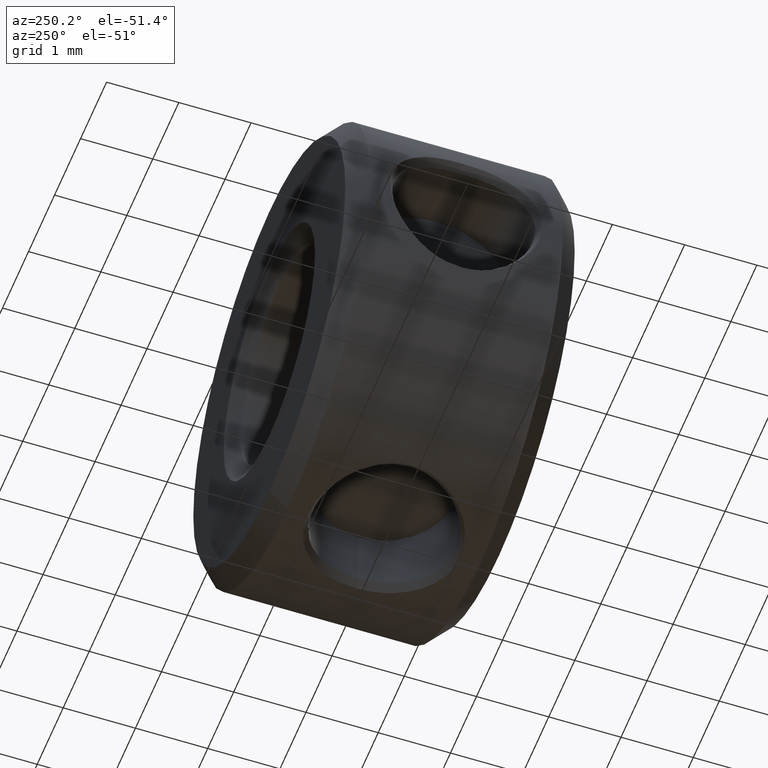
[diagram: clean part render]
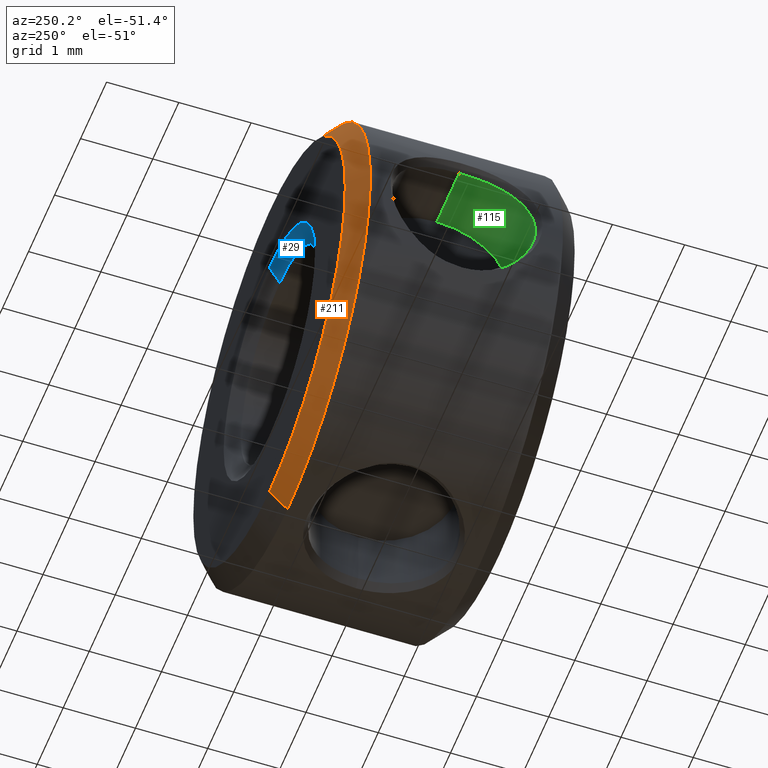
[diagram: same view with three faces highlighted in distinct colors, each labeled with its STEP entity id]
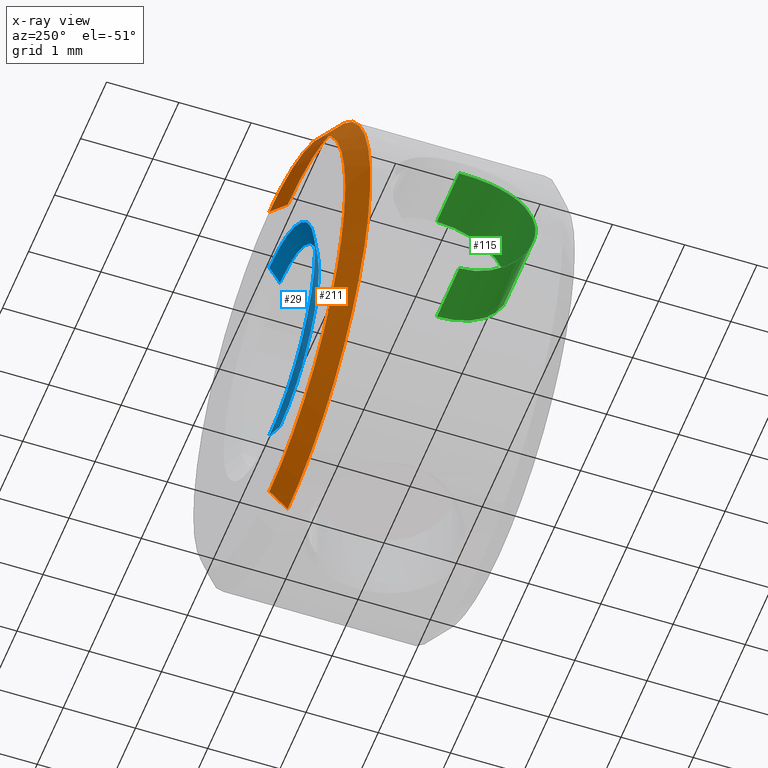
[diagram: x-ray of the same camera — body ghosted, the three highlighted faces saturated]
A machine part, auxiliary view with three faces highlighted in distinct colors.
The next image is the same camera in x-ray (body ghosted, the three faces saturated) — at least one of them is partly hidden behind the body in this view.
Their STEP definitions:

[orange] entity #211 — the highlighted conical surface has half-angle 45 deg.
#204 = VERTEX_POINT ( 'NONE', #1325 ) ;
#205 = EDGE_CURVE ( 'NONE', #297, #204, #1324, .T. ) ;
#211 = ADVANCED_FACE ( 'NONE', ( #1231 ), #1606, .T. ) ;
#212 = EDGE_LOOP ( 'NONE', ( #213, #214, #252, #253 ) ) ;
#213 = ORIENTED_EDGE ( 'NONE', *, *, #299, .F. ) ;
#214 = ORIENTED_EDGE ( 'NONE', *, *, #251, .F. ) ;
#251 = EDGE_CURVE ( 'NONE', #297, #294, #1519, .T. ) ;
#252 = ORIENTED_EDGE ( 'NONE', *, *, #205, .T. ) ;
#253 = ORIENTED_EDGE ( 'NONE', *, *, #270, .T. ) ;
#270 = EDGE_CURVE ( 'NONE', #204, #300, #1423, .T. ) ;
#294 = VERTEX_POINT ( 'NONE', #1767 ) ;
#297 = VERTEX_POINT ( 'NONE', #1761 ) ;
#299 = EDGE_CURVE ( 'NONE', #294, #300, #1760, .T. ) ;
#300 = VERTEX_POINT ( 'NONE', #1756 ) ;
#1231 = FACE_OUTER_BOUND ( 'NONE', #212, .T. ) ;
#1321 = DIRECTION ( 'NONE',  ( 0.0000000000000000000, -0.7071067811865482400, -0.7071067811865469100 ) ) ;
#1322 = VECTOR ( 'NONE', #1321, 999.9999999999998900 ) ;
#1323 = CARTESIAN_POINT ( 'NONE',  ( 1.252768374745863700E-015, 1.587499999999999900, -2.920999999999999400 ) ) ;
#1324 = LINE ( 'NONE', #1323, #1322 ) ;
#1325 = CARTESIAN_POINT ( 'NONE',  ( 1.641593733475148500E-015, 1.333500000000000100, -3.174999999999998900 ) ) ;
#1420 = DIRECTION ( 'NONE',  ( 0.0000000000000000000, 0.0000000000000000000, 1.000000000000000000 ) ) ;
#1421 = DIRECTION ( 'NONE',  ( 0.0000000000000000000, 1.000000000000000000, 0.0000000000000000000 ) ) ;
#1422 = AXIS2_PLACEMENT_3D ( 'NONE', #1424, #1421, #1420 ) ;
#1423 = CIRCLE ( 'NONE', #1422, 3.174999999999998900 ) ;
#1424 = CARTESIAN_POINT ( 'NONE',  ( 1.252768374745863700E-015, 1.333500000000000100, 0.0000000000000000000 ) ) ;
#1480 = CARTESIAN_POINT ( 'NONE',  ( 1.252768374745863700E-015, 1.587499999999999900, 0.0000000000000000000 ) ) ;
#1481 = DIRECTION ( 'NONE',  ( 0.0000000000000000000, 0.0000000000000000000, -1.000000000000000000 ) ) ;
#1482 = DIRECTION ( 'NONE',  ( 0.0000000000000000000, -1.000000000000000000, 0.0000000000000000000 ) ) ;
#1483 = AXIS2_PLACEMENT_3D ( 'NONE', #1480, #1482, #1481 ) ;
#1516 = DIRECTION ( 'NONE',  ( 0.0000000000000000000, 0.0000000000000000000, 1.000000000000000000 ) ) ;
#1517 = DIRECTION ( 'NONE',  ( 0.0000000000000000000, 1.000000000000000000, 0.0000000000000000000 ) ) ;
#1518 = AXIS2_PLACEMENT_3D ( 'NONE', #1525, #1517, #1516 ) ;
#1519 = CIRCLE ( 'NONE', #1518, 2.920999999999999400 ) ;
#1525 = CARTESIAN_POINT ( 'NONE',  ( 1.252768374745863700E-015, 1.587499999999999900, 0.0000000000000000000 ) ) ;
#1606 = CONICAL_SURFACE ( 'NONE', #1483, 2.920999999999999400, 0.7853981633974473900 ) ;
#1756 = CARTESIAN_POINT ( 'NONE',  ( 1.252768374745863700E-015, 1.333500000000000100, 3.174999999999998900 ) ) ;
#1757 = DIRECTION ( 'NONE',  ( 8.659560562354926700E-017, -0.7071067811865482400, 0.7071067811865469100 ) ) ;
#1758 = VECTOR ( 'NONE', #1757, 999.9999999999998900 ) ;
#1759 = CARTESIAN_POINT ( 'NONE',  ( 1.610487704776805500E-015, 1.587499999999999900, 2.920999999999999400 ) ) ;
#1760 = LINE ( 'NONE', #1759, #1758 ) ;
#1761 = CARTESIAN_POINT ( 'NONE',  ( 1.252768374745863700E-015, 1.587499999999999900, -2.920999999999999400 ) ) ;
#1767 = CARTESIAN_POINT ( 'NONE',  ( 1.626040719125977000E-015, 1.587499999999999900, 2.920999999999999400 ) ) ;

[blue] entity #29 — the highlighted conical surface has half-angle 60 deg.
#29 = ADVANCED_FACE ( 'NONE', ( #652 ), #613, .F. ) ;
#30 = EDGE_LOOP ( 'NONE', ( #291, #301, #285, #286 ) ) ;
#284 = VERTEX_POINT ( 'NONE', #1718 ) ;
#285 = ORIENTED_EDGE ( 'NONE', *, *, #292, .T. ) ;
#286 = ORIENTED_EDGE ( 'NONE', *, *, #287, .F. ) ;
#287 = EDGE_CURVE ( 'NONE', #308, #296, #1716, .T. ) ;
#291 = ORIENTED_EDGE ( 'NONE', *, *, #307, .F. ) ;
#292 = EDGE_CURVE ( 'NONE', #284, #296, #1772, .T. ) ;
#295 = EDGE_CURVE ( 'NONE', #305, #284, #1766, .T. ) ;
#296 = VERTEX_POINT ( 'NONE', #1762 ) ;
#301 = ORIENTED_EDGE ( 'NONE', *, *, #295, .T. ) ;
#305 = VERTEX_POINT ( 'NONE', #1751 ) ;
#307 = EDGE_CURVE ( 'NONE', #305, #308, #1750, .T. ) ;
#308 = VERTEX_POINT ( 'NONE', #1745 ) ;
#538 = DIRECTION ( 'NONE',  ( 0.0000000000000000000, 0.0000000000000000000, 1.000000000000000000 ) ) ;
#539 = DIRECTION ( 'NONE',  ( 0.0000000000000000000, 1.000000000000000000, 0.0000000000000000000 ) ) ;
#540 = AXIS2_PLACEMENT_3D ( 'NONE', #614, #539, #538 ) ;
#613 = CONICAL_SURFACE ( 'NONE', #540, 1.499999999999998900, 1.047197551196593900 ) ;
#614 = CARTESIAN_POINT ( 'NONE',  ( 1.252768374745863700E-015, 1.440853031625834100, 0.0000000000000000000 ) ) ;
#652 = FACE_OUTER_BOUND ( 'NONE', #30, .T. ) ;
#1713 = DIRECTION ( 'NONE',  ( 0.0000000000000000000, 0.5000000000000034400, 0.8660254037844367100 ) ) ;
#1714 = VECTOR ( 'NONE', #1713, 999.9999999999998900 ) ;
#1715 = CARTESIAN_POINT ( 'NONE',  ( 1.252768374745863700E-015, 1.440853031625834100, 1.499999999999998900 ) ) ;
#1716 = LINE ( 'NONE', #1715, #1714 ) ;
#1718 = CARTESIAN_POINT ( 'NONE',  ( 1.467571423316309400E-015, 1.587500000000000400, -1.753999999999999100 ) ) ;
#1745 = CARTESIAN_POINT ( 'NONE',  ( 1.252768374745863700E-015, 1.440853031625834100, 1.499999999999998900 ) ) ;
#1746 = DIRECTION ( 'NONE',  ( 0.0000000000000000000, 0.0000000000000000000, 1.000000000000000000 ) ) ;
#1747 = DIRECTION ( 'NONE',  ( 0.0000000000000000000, 1.000000000000000000, 0.0000000000000000000 ) ) ;
#1748 = CARTESIAN_POINT ( 'NONE',  ( 1.252768374745863700E-015, 1.440853031625834100, 0.0000000000000000000 ) ) ;
#1749 = AXIS2_PLACEMENT_3D ( 'NONE', #1748, #1747, #1746 ) ;
#1750 = CIRCLE ( 'NONE', #1749, 1.499999999999998900 ) ;
#1751 = CARTESIAN_POINT ( 'NONE',  ( 1.452018408967138100E-015, 1.440853031625834100, -1.499999999999998900 ) ) ;
#1762 = CARTESIAN_POINT ( 'NONE',  ( 1.252768374745863700E-015, 1.587500000000000400, 1.753999999999999100 ) ) ;
#1763 = DIRECTION ( 'NONE',  ( 1.060575238724904700E-016, 0.5000000000000034400, -0.8660254037844367100 ) ) ;
#1764 = VECTOR ( 'NONE', #1763, 999.9999999999998900 ) ;
#1765 = CARTESIAN_POINT ( 'NONE',  ( 1.436465394617966800E-015, 1.440853031625834100, -1.499999999999998900 ) ) ;
#1766 = LINE ( 'NONE', #1765, #1764 ) ;
#1768 = DIRECTION ( 'NONE',  ( 0.0000000000000000000, 0.0000000000000000000, 1.000000000000000000 ) ) ;
#1769 = DIRECTION ( 'NONE',  ( 0.0000000000000000000, 1.000000000000000000, 0.0000000000000000000 ) ) ;
#1770 = CARTESIAN_POINT ( 'NONE',  ( 1.252768374745863700E-015, 1.587500000000000400, 0.0000000000000000000 ) ) ;
#1771 = AXIS2_PLACEMENT_3D ( 'NONE', #1770, #1769, #1768 ) ;
#1772 = CIRCLE ( 'NONE', #1771, 1.753999999999999100 ) ;

[green] entity #115 — the highlighted cylindrical surface (partial cylindrical patch) has radius 0.9906 mm, axis along (-1, 0, -0).
#28 = EDGE_CURVE ( 'NONE', #125, #61, #536, .T. ) ;
#60 = VERTEX_POINT ( 'NONE', #641 ) ;
#61 = VERTEX_POINT ( 'NONE', #644 ) ;
#115 = ADVANCED_FACE ( 'NONE', ( #796 ), #761, .F. ) ;
#116 = EDGE_LOOP ( 'NONE', ( #117, #126, #128, #130 ) ) ;
#117 = ORIENTED_EDGE ( 'NONE', *, *, #124, .F. ) ;
#118 = VERTEX_POINT ( 'NONE', #757 ) ;
#124 = EDGE_CURVE ( 'NONE', #118, #125, #865, .T. ) ;
#125 = VERTEX_POINT ( 'NONE', #888 ) ;
#126 = ORIENTED_EDGE ( 'NONE', *, *, #127, .T. ) ;
#127 = EDGE_CURVE ( 'NONE', #118, #60, #887, .T. ) ;
#128 = ORIENTED_EDGE ( 'NONE', *, *, #129, .T. ) ;
#129 = EDGE_CURVE ( 'NONE', #60, #61, #1041, .T. ) ;
#130 = ORIENTED_EDGE ( 'NONE', *, *, #28, .F. ) ;
#536 = LINE ( 'NONE', #541, #654 ) ;
#541 = CARTESIAN_POINT ( 'NONE',  ( -2.032000000000003600, 0.0000000000000000000, 0.9905999999999927100 ) ) ;
#641 = CARTESIAN_POINT ( 'NONE',  ( -2.889510761236799000, 5.980579797028376000E-009, -0.9905999608675786200 ) ) ;
#644 = CARTESIAN_POINT ( 'NONE',  ( -2.889510672946475900, 0.0000000000000000000, 0.9905999999999897100 ) ) ;
#653 = DIRECTION ( 'NONE',  ( -1.000000000000000000, 0.0000000000000000000, -3.491483361109381700E-015 ) ) ;
#654 = VECTOR ( 'NONE', #653, 1000.000000000000000 ) ;
#757 = CARTESIAN_POINT ( 'NONE',  ( -2.031999999999996500, 1.213135119235368100E-016, -0.9906000000000070300 ) ) ;
#758 = DIRECTION ( 'NONE',  ( -3.502369222646491400E-015, 0.0000000000000000000, 1.000000000000000000 ) ) ;
#759 = DIRECTION ( 'NONE',  ( -1.000000000000000000, 0.0000000000000000000, -3.491483361109381700E-015 ) ) ;
#760 = AXIS2_PLACEMENT_3D ( 'NONE', #762, #759, #758 ) ;
#761 = CYLINDRICAL_SURFACE ( 'NONE', #760, 0.9905999999999999300 ) ;
#762 = CARTESIAN_POINT ( 'NONE',  ( -2.032000000000000000, 0.0000000000000000000, -7.094694189774264400E-015 ) ) ;
#796 = FACE_OUTER_BOUND ( 'NONE', #116, .T. ) ;
#809 = DIRECTION ( 'NONE',  ( -1.000000000000000000, 0.0000000000000000000, -3.491483361109381700E-015 ) ) ;
#810 = VECTOR ( 'NONE', #809, 1000.000000000000000 ) ;
#862 = DIRECTION ( 'NONE',  ( -1.000000000000000000, 0.0000000000000000000, -3.491483361109382100E-015 ) ) ;
#863 = CARTESIAN_POINT ( 'NONE',  ( -2.032000000000000000, 0.0000000000000000000, -7.094694189774264400E-015 ) ) ;
#864 = AXIS2_PLACEMENT_3D ( 'NONE', #863, #862, #889 ) ;
#865 = CIRCLE ( 'NONE', #864, 0.9905999999999999300 ) ;
#886 = CARTESIAN_POINT ( 'NONE',  ( -2.031999999999996500, 1.213135119235368100E-016, -0.9906000000000070300 ) ) ;
#887 = LINE ( 'NONE', #886, #810 ) ;
#888 = CARTESIAN_POINT ( 'NONE',  ( -2.032000000000003600, 0.0000000000000000000, 0.9905999999999927100 ) ) ;
#889 = DIRECTION ( 'NONE',  ( -3.502369222646491400E-015, 0.0000000000000000000, 1.000000000000000000 ) ) ;
#982 = CARTESIAN_POINT ( 'NONE',  ( -2.951098669059535800, -0.5786803089768903800, -0.8221617528309952400 ) ) ;
#983 = CARTESIAN_POINT ( 'NONE',  ( -2.927973712656081900, -0.4423544846845637900, -0.8957740901765920400 ) ) ;
#984 = CARTESIAN_POINT ( 'NONE',  ( -2.897162919437234600, -0.1969913034281218200, -0.9794300062413541200 ) ) ;
#985 = CARTESIAN_POINT ( 'NONE',  ( -2.889477089453982700, -0.08771267145464037300, -0.9906000005298670800 ) ) ;
#986 = CARTESIAN_POINT ( 'NONE',  ( -2.889510761236799000, 5.980579797028376000E-009, -0.9905999608675786200 ) ) ;
#1041 = B_SPLINE_CURVE_WITH_KNOTS ( 'NONE', 3,
 ( #986, #985, #984, #983, #982, #1169, #1168, #1167, #1166, #1165, #1164, #1163, #1162, #1161, #1160, #1159, #1158, #1157 ),
 .UNSPECIFIED., .F., .F.,
 ( 4, 2, 2, 2, 2, 2, 2, 2, 4 ),
 ( 0.4999038747097581100, 0.5624158903710383400, 0.6249279060323185100, 0.6874399216935988000, 0.7499519373548789700, 0.8124639530161592600, 0.8749759686774394300, 0.9374879843387197200, 1.000000000000000000 ),
 .UNSPECIFIED. ) ;
#1157 = CARTESIAN_POINT ( 'NONE',  ( -2.889510672946475900, 0.0000000000000000000, 0.9905999999999897100 ) ) ;
#1158 = CARTESIAN_POINT ( 'NONE',  ( -2.889524662119001600, -0.08755145866467822800, 0.9905999999999894900 ) ) ;
#1159 = CARTESIAN_POINT ( 'NONE',  ( -2.897250381160079200, -0.1972692141291688700, 0.9793809802619627400 ) ) ;
#1160 = CARTESIAN_POINT ( 'NONE',  ( -2.928125278979336600, -0.4427032408419233100, 0.8956093388805646000 ) ) ;
#1161 = CARTESIAN_POINT ( 'NONE',  ( -2.951282012581523300, -0.5789910928452708400, 0.8219275954468978600 ) ) ;
#1162 = CARTESIAN_POINT ( 'NONE',  ( -3.012988716481860500, -0.8219215579561134400, 0.5789996634871904500 ) ) ;
#1163 = CARTESIAN_POINT ( 'NONE',  ( -3.036120396370013600, -0.8955826719745835200, 0.4427433496944964700 ) ) ;
#1164 = CARTESIAN_POINT ( 'NONE',  ( -3.066940412022283600, -0.9793470249977945800, 0.1974066885082961500 ) ) ;
#1165 = CARTESIAN_POINT ( 'NONE',  ( -3.074628776981571700, -0.9905739786518470400, 0.08805143087283841300 ) ) ;
#1166 = CARTESIAN_POINT ( 'NONE',  ( -3.074562045798801900, -0.9906259345455856700, -0.08746496136507354900 ) ) ;
#1167 = CARTESIAN_POINT ( 'NONE',  ( -3.066824347505470200, -0.9793801142174909400, -0.1973409252470853800 ) ) ;
#1168 = CARTESIAN_POINT ( 'NONE',  ( -3.035940285514917600, -0.8954999104610033000, -0.4429545792362700200 ) ) ;
#1169 = CARTESIAN_POINT ( 'NONE',  ( -3.012787701454502800, -0.8217909872220786600, -0.5792067171021759700 ) ) ;